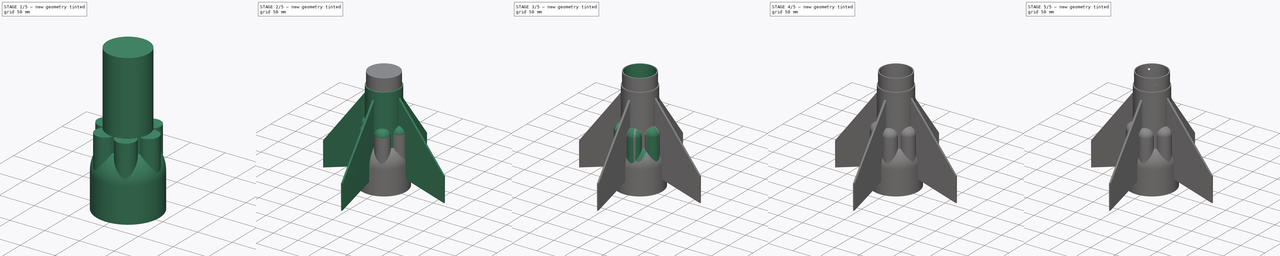
[diagram: build sequence overview — one tinted view per stage of 5, left to right]
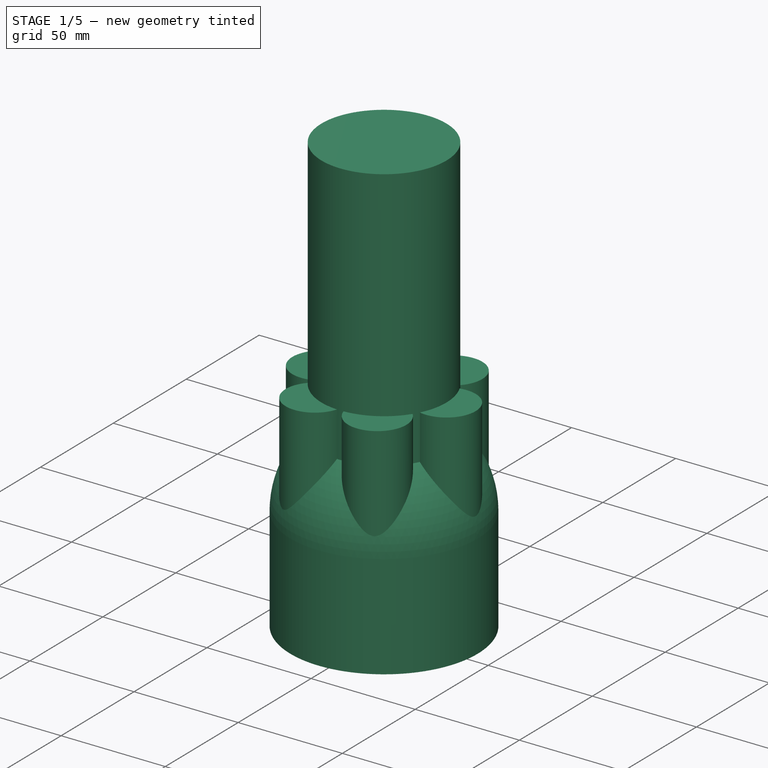
[diagram: stage 1 of 5 — iso view after this stage's code; geometry added in this stage tinted green]
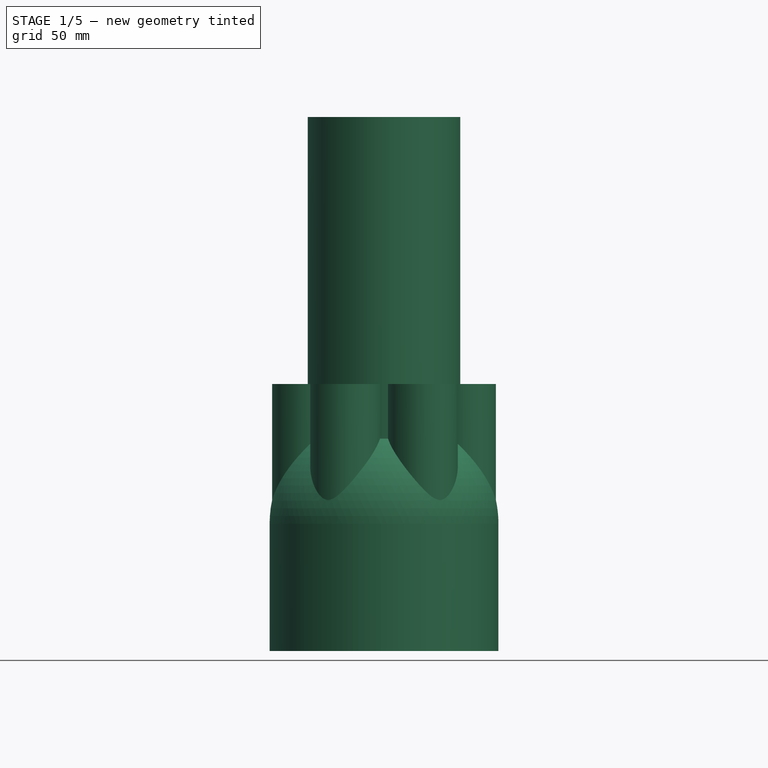
[diagram: stage 1 of 5 — front view after this stage's code; geometry added in this stage tinted green]
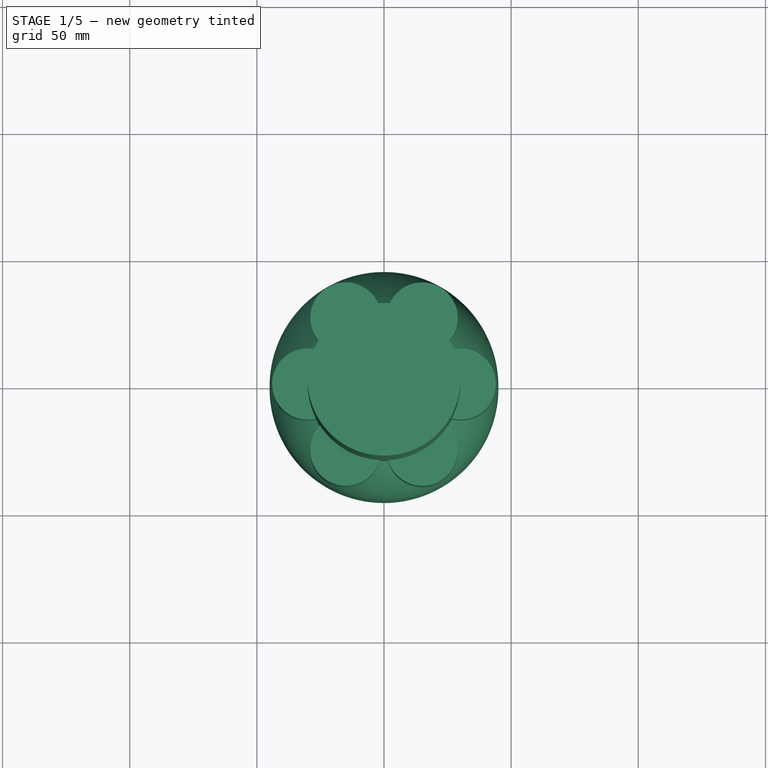
[diagram: stage 1 of 5 — top view after this stage's code; geometry added in this stage tinted green]
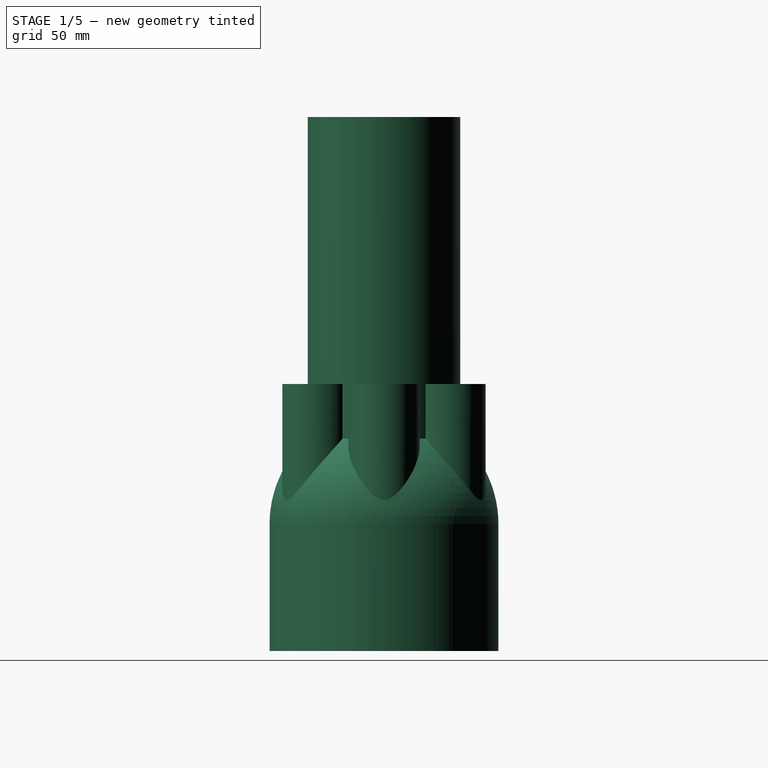
[diagram: stage 1 of 5 — right view after this stage's code; geometry added in this stage tinted green]
FCSTD DOCUMENT  (FreeCAD 1.0R39109 (Git))
Label: 200_etage2_base
License: All rights reserved
LicenseURL: https://en.wikipedia.org/wiki/All_rights_reserved
objects: Sketcher::SketchObject×12, PartDesign::Pocket×10, PartDesign::PolarPattern×7, PartDesign::AdditiveCylinder×4, PartDesign::Body×3, PartDesign::AdditiveSphere×2, PartDesign::AdditiveLoft×1, PartDesign::Boolean×1, App::Part×1
note: 94 computed .brp shape members not serialized (recipe doc carries the construction recipe); baked Part::Feature solids carry a one-line shape summary decoded from their .brp

FEATURE [PartDesign::Body] Body004  label="Ailerons"
  AllowCompound = false
  Group = -> [Sketch015,Sketch016,Cylinder,AdditiveLoft003,PolarPattern002]
  Origin = -> Origin005
  Placement = pos=(0,0,0) rot=(0,0,-1;1.5708rad)
  Tip = -> PolarPattern002
FEATURE [PartDesign::AdditiveCylinder] Cylinder009
  Angle = 360
  AttacherType = Attacher::AttachEngine3D
  AttachmentSupport = -> [XY_Plane007]
  FirstAngle = 0
  Height = 50
  MapMode = 5
  Radius = 45
  SecondAngle = 0
  Suppressed = false
FEATURE [PartDesign::AdditiveSphere] Sphere
  Angle1 = -90
  Angle2 = 90
  Angle3 = 360
  AttacherType = Attacher::AttachEngine3D
  AttachmentOffset = pos=(0,0,50) rot=(0,0,1;0rad)
  AttachmentSupport = -> [XY_Plane007]
  BaseFeature = -> Cylinder009
  MapMode = 5
  Placement = pos=(0,0,50) rot=(0,0,1;0rad)
  Radius = 45
  Suppressed = false
FEATURE [PartDesign::AdditiveCylinder] Cylinder010
  Angle = 360
  AttacherType = Attacher::AttachEngine3D
  AttachmentOffset = pos=(30,0,0) rot=(0,0,1;0rad)
  AttachmentSupport = -> [XY_Plane007]
  BaseFeature = -> Sphere
  FirstAngle = 0
  Height = 105
  MapMode = 5
  Placement = pos=(30,0,0) rot=(0,0,1;0rad)
  Radius = 14
  SecondAngle = 0
  Suppressed = false
FEATURE [PartDesign::PolarPattern] PolarPattern
  Angle = 360
  Axis = -> Z_Axis007
  BaseFeature = -> Cylinder010
  Mode = 0
  Occurrences = 6
  Offset = 120
  Originals = -> [Cylinder010]
  Placement = pos=(30,0,0) rot=(0,0,1;0rad)
  Suppressed = false
  TransformMode = 0
FEATURE [PartDesign::Body] Body005  label="Moteurs"
  AllowCompound = false
  Group = -> [Cylinder009,Sphere,Cylinder010,PolarPattern,Sphere001,PolarPattern003]
  Origin = -> Origin007
  Placement = pos=(0,0,0) rot=(0,0,1;-0.261799rad)
  Tip = -> PolarPattern003
FEATURE [PartDesign::AdditiveCylinder] Cylinder011  label="Intérieur"
  Angle = 360
  AttacherType = Attacher::AttachEngine3D
  FirstAngle = 0
  Height = 210
  Radius = 30
  SecondAngle = 0
  Suppressed = false
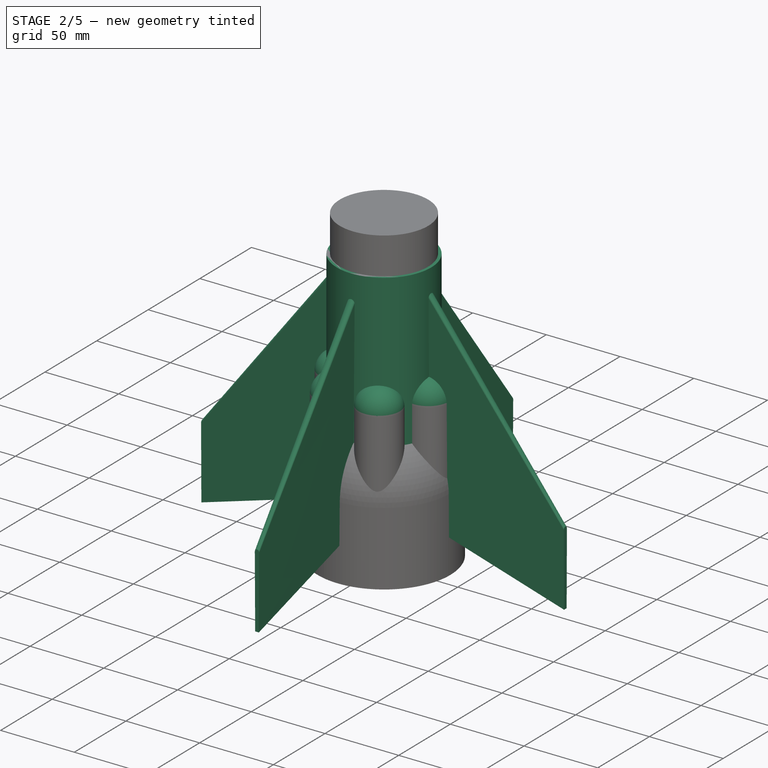
[diagram: stage 2 of 5 — iso view after this stage's code; geometry added in this stage tinted green]
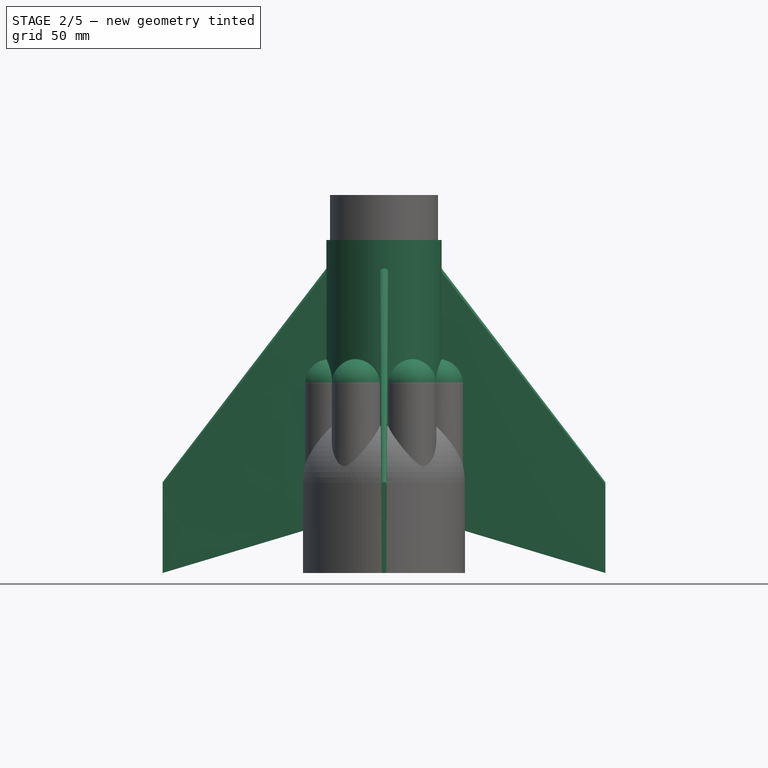
[diagram: stage 2 of 5 — front view after this stage's code; geometry added in this stage tinted green]
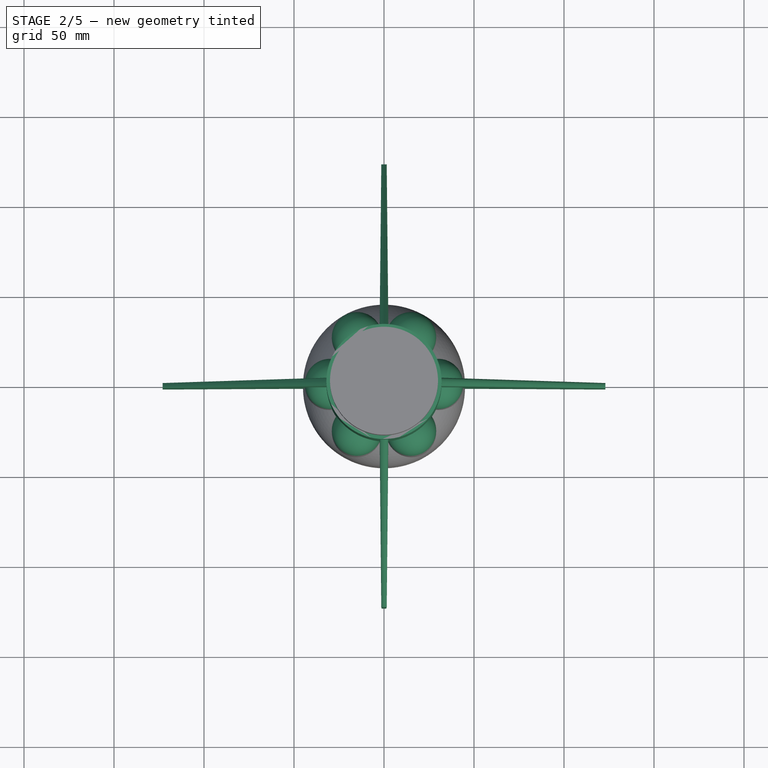
[diagram: stage 2 of 5 — top view after this stage's code; geometry added in this stage tinted green]
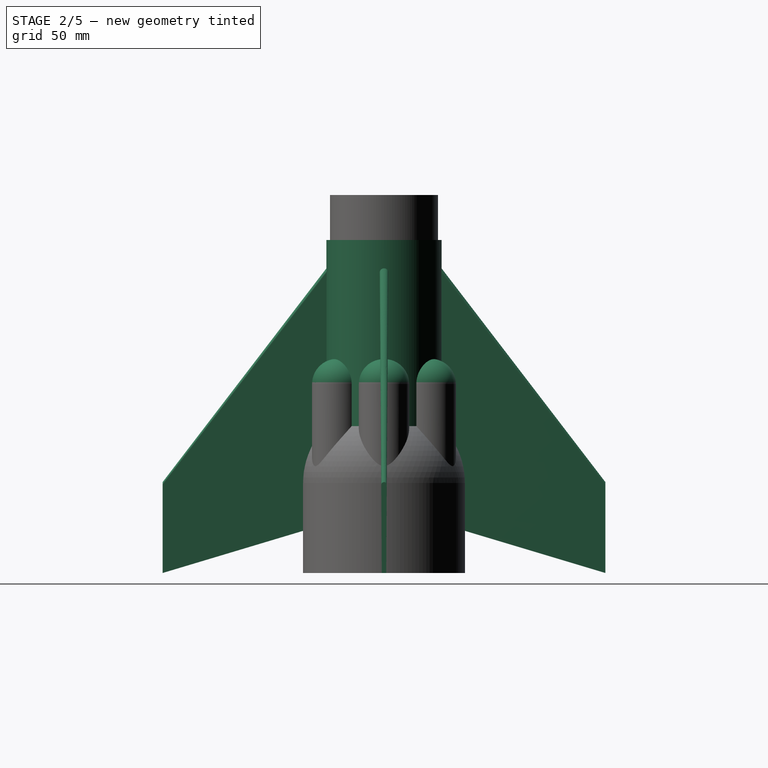
[diagram: stage 2 of 5 — right view after this stage's code; geometry added in this stage tinted green]
FEATURE [Sketcher::SketchObject] Sketch
  ArcFitTolerance = 0
  AttachmentSupport = -> [XY_Plane008]
  FullyConstrained = true
  MakeInternals = false
  MapMode = 5
  sketch-geometry (1):
    g0: Circle CenterX=0 CenterY=0 CenterZ=0 NormalX=0 NormalY=0 NormalZ=1 AngleXU=0 Radius=12.5
  constraints (2):
    c: Coincident(g0,g-1)
    c: Radius(g0) = 12.5
FEATURE [Sketcher::SketchObject] Sketch001
  ArcFitTolerance = 0
  FullyConstrained = true
  MakeInternals = false
  MapMode = 5
  Placement = pos=(20,20,0) rot=(0,0,1;0rad)
  sketch-geometry (1):
    g0: Circle CenterX=0 CenterY=0 CenterZ=0 NormalX=0 NormalY=0 NormalZ=1 AngleXU=0 Radius=12.5
  constraints (2):
    c: Coincident(g0,g-1)
    c: Radius(g0) = 12.5
FEATURE [Sketcher::SketchObject] Sketch002
  ArcFitTolerance = 0
  AttachmentOffset = pos=(0,0,105) rot=(0,0,1;0rad)
  AttachmentSupport = -> [XY_Plane008]
  FullyConstrained = true
  MakeInternals = false
  MapMode = 5
  Placement = pos=(0,0,105) rot=(0,0,1;0rad)
  sketch-geometry (1):
    g0: Circle CenterX=0 CenterY=0 CenterZ=0 NormalX=0 NormalY=0 NormalZ=1 AngleXU=0 Radius=28
  constraints (2):
    c: Coincident(g0,g-1)
    c: Radius(g0) = 28
FEATURE [Sketcher::SketchObject] Sketch008
  ArcFitTolerance = 0
  AttachmentSupport = -> [XY_Plane008]
  FullyConstrained = true
  MakeInternals = false
  MapMode = 5
  sketch-geometry (1):
    g0: Circle CenterX=0 CenterY=0 CenterZ=0 NormalX=0 NormalY=0 NormalZ=1 AngleXU=0 Radius=43
  constraints (2):
    c: Coincident(g0,g-1)
    c: Radius(g0) = 43
FEATURE [Sketcher::SketchObject] Sketch017
  ArcFitTolerance = 0
  AttachmentSupport = -> [XY_Plane008]
  FullyConstrained = true
  MakeInternals = false
  MapMode = 5
  sketch-geometry (1):
    g0: Circle CenterX=0 CenterY=0 CenterZ=0 NormalX=0 NormalY=0 NormalZ=1 AngleXU=0 Radius=10
  constraints (2):
    c: Coincident(g0,g-1)
    c: Radius(g0) = 10
FEATURE [Sketcher::SketchObject] Sketch015
  ArcFitTolerance = 0
  FullyConstrained = true
  MakeInternals = false
  Placement = pos=(23,0,178.5) rot=(0,1,0;1.5708rad)
  sketch-geometry (5):
    g0: LineSegment StartX=148.5 StartY=0 StartZ=0 EndX=148.5 EndY=1.25 EndZ=0
    g1: ArcOfCircle CenterX=0 CenterY=0 CenterZ=0 NormalX=0 NormalY=0 NormalZ=1 AngleXU=0 Radius=2.5 StartAngle=1.5708 EndAngle=4.71239
    g2: LineSegment StartX=148.5 StartY=0 StartZ=0 EndX=148.5 EndY=-1.25 EndZ=0
    g3: LineSegment StartX=0 StartY=-2.5 StartZ=0 EndX=148.5 EndY=-1.25 EndZ=0
    g4: LineSegment StartX=2e-16 StartY=2.5 StartZ=0 EndX=148.5 EndY=1.25 EndZ=0
  constraints (15):
    c: Coincident(g1,g-1)
    c: PointOnObject(g0,g-1)
    c: Vertical(g0)
    c: DistanceY(g0,g0) = 1.25
    c: DistanceX(g1,g0) = 148.5
    c: Radius(g1) = 2.5
    c: PointOnObject(g1,g-2)
    c: PointOnObject(g1,g-2)
    c: Coincident(g2,g0)
    c: Vertical(g2)
    c: Coincident(g3,g2)
    c: Coincident(g4,g0)
    c: Equal(g0,g2)
    c: Coincident(g3,g1)
    c: Coincident(g4,g1)
FEATURE [Sketcher::SketchObject] Sketch016
  ArcFitTolerance = 0
  FullyConstrained = true
  MakeInternals = false
  Placement = pos=(123,0,49) rot=(0,1,0;1.5708rad)
  sketch-geometry (5):
    g0: LineSegment StartX=49 StartY=0 StartZ=0 EndX=49 EndY=1.25 EndZ=0
    g1: ArcOfCircle CenterX=0 CenterY=0 CenterZ=0 NormalX=0 NormalY=0 NormalZ=1 AngleXU=0 Radius=1.5 StartAngle=1.5708 EndAngle=4.71239
    g2: LineSegment StartX=1e-16 StartY=1.5 StartZ=0 EndX=49 EndY=1.25 EndZ=0
    g3: LineSegment StartX=49 StartY=0 StartZ=0 EndX=49 EndY=-1.25 EndZ=0
    g4: LineSegment StartX=49 StartY=-1.25 StartZ=0 EndX=0 EndY=-1.5 EndZ=0
  constraints (15):
    c: Coincident(g1,g-1)
    c: PointOnObject(g0,g-1)
    c: Vertical(g0)
    c: DistanceY(g0,g0) = 1.25
    c: Radius(g1) = 1.5
    c: PointOnObject(g1,g-2)
    c: PointOnObject(g1,g-2)
    c: Coincident(g2,g1)
    c: Coincident(g2,g0)
    c: Coincident(g3,g0)
    c: Vertical(g3)
    c: Coincident(g4,g3)
    c: Coincident(g4,g1)
    c: DistanceX(g1,g0) = 49
    c: Equal(g0,g3)
FEATURE [PartDesign::AdditiveCylinder] Cylinder  label="Corps principal"
  Angle = 360
  AttacherType = Attacher::AttachEngine3D
  FirstAngle = 0
  Height = 185
  Radius = 32
  SecondAngle = 0
  Suppressed = false
FEATURE [PartDesign::AdditiveLoft] AdditiveLoft003
  BaseFeature = -> Cylinder
  Closed = false
  Profile = -> Sketch015
  Ruled = false
  Sections = -> [Sketch016]
  Suppressed = false
FEATURE [PartDesign::PolarPattern] PolarPattern002
  Angle = 360
  Axis = -> Z_Axis005
  BaseFeature = -> AdditiveLoft003
  Mode = 0
  Occurrences = 4
  Offset = 120
  Originals = -> [AdditiveLoft003]
  Suppressed = false
  TransformMode = 0
FEATURE [PartDesign::AdditiveSphere] Sphere001
  Angle1 = -90
  Angle2 = 90
  Angle3 = 360
  AttacherType = Attacher::AttachEngine3D
  AttachmentOffset = pos=(30,0,105) rot=(0,0,1;0rad)
  AttachmentSupport = -> [XY_Plane007]
  BaseFeature = -> PolarPattern
  MapMode = 5
  Placement = pos=(30,0,105) rot=(0,0,1;0rad)
  Radius = 14
  Suppressed = false
FEATURE [PartDesign::PolarPattern] PolarPattern003
  Angle = 360
  Axis = -> Z_Axis007
  BaseFeature = -> Sphere001
  Mode = 0
  Occurrences = 6
  Offset = 120
  Originals = -> [Sphere001]
  Placement = pos=(30,0,105) rot=(0,0,1;0rad)
  Suppressed = false
  TransformMode = 0
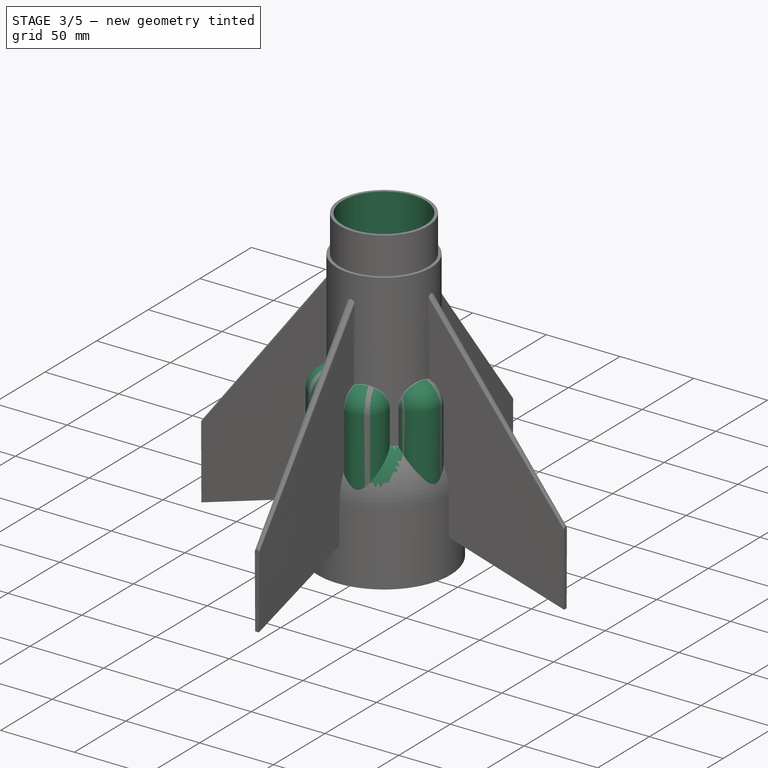
[diagram: stage 3 of 5 — iso view after this stage's code; geometry added in this stage tinted green]
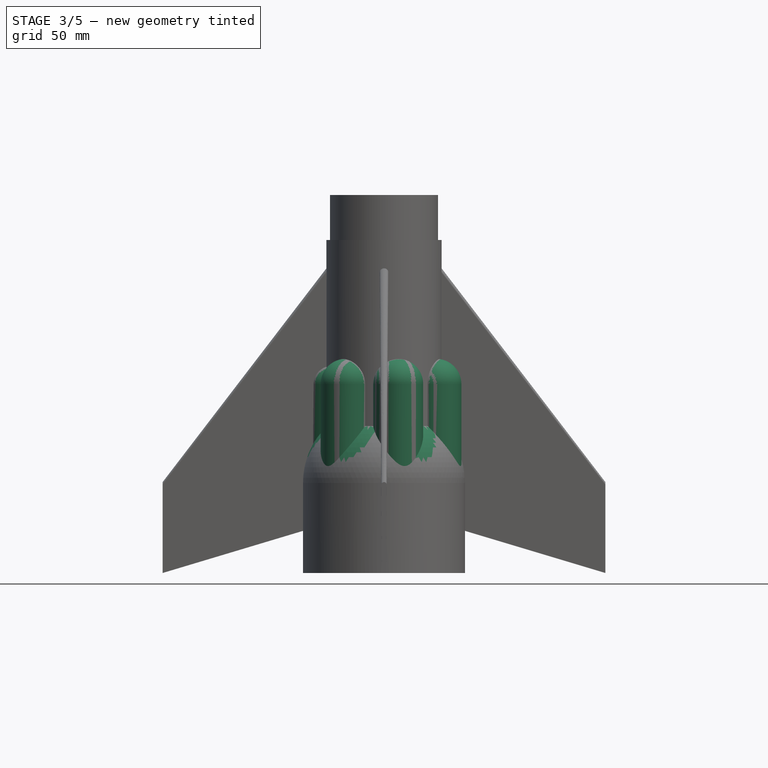
[diagram: stage 3 of 5 — front view after this stage's code; geometry added in this stage tinted green]
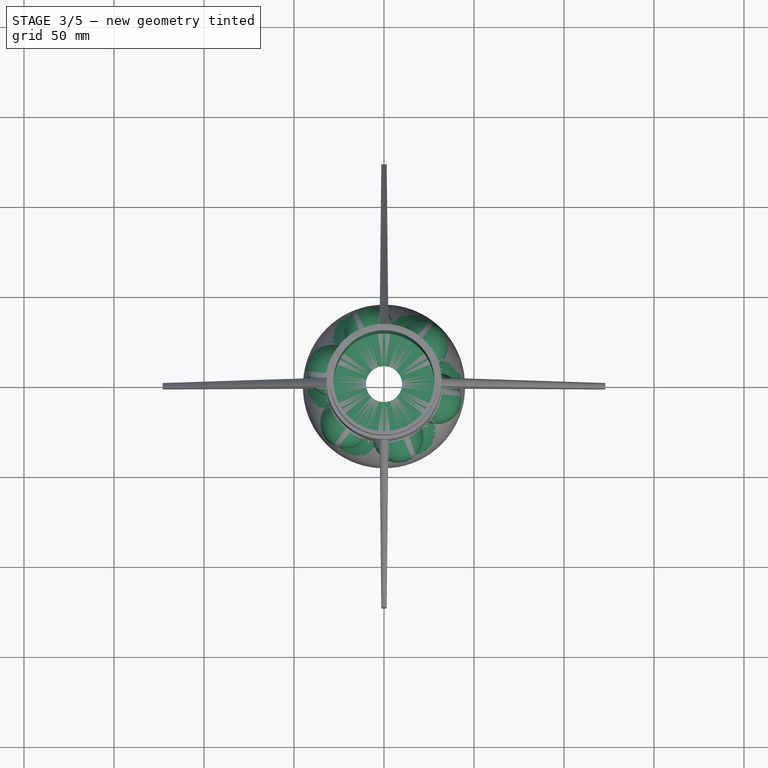
[diagram: stage 3 of 5 — top view after this stage's code; geometry added in this stage tinted green]
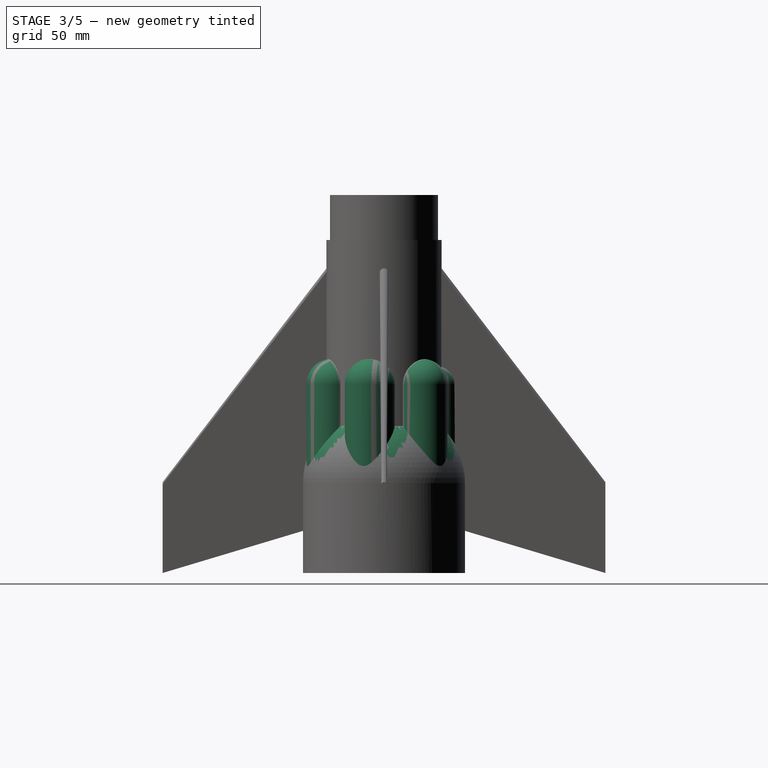
[diagram: stage 3 of 5 — right view after this stage's code; geometry added in this stage tinted green]
FEATURE [PartDesign::Boolean] Boolean
  BaseFeature = -> Cylinder011
  Group = -> [Body004,Body005]
  Suppressed = false
  Type = 0
  UsePlacement = false
FEATURE [PartDesign::Pocket] Pocket  label="Vide moteur centre"
  BaseFeature = -> Boolean
  Direction = (0,0,-1)
  Length = 100
  Length2 = 5
  Profile = -> Sketch
  ReferenceAxis = -> Sketch [N_Axis]
  Reversed = true
  Suppressed = false
  Type = 0
FEATURE [PartDesign::Pocket] Pocket001  label="Vide supérieur"
  BaseFeature = -> Pocket
  Direction = (0,0,-1)
  Length = 5
  Length2 = 5
  Profile = -> Sketch002
  ReferenceAxis = -> Sketch002 [N_Axis]
  Reversed = true
  Suppressed = false
  Type = 1
FEATURE [PartDesign::Pocket] Pocket002  label="Trou charge d'éjection"
  BaseFeature = -> Pocket001
  Direction = (0,0,-1)
  Length = 5
  Length2 = 5
  Midplane = true
  Profile = -> Sketch017
  ReferenceAxis = -> Sketch017 [N_Axis]
  Suppressed = false
  Type = 1
FEATURE [PartDesign::Pocket] Pocket003  label="Creu inférieur"
  BaseFeature = -> Pocket002
  Direction = (0,0,-1)
  Length = 3
  Length2 = 5
  Profile = -> Sketch008
  ReferenceAxis = -> Sketch008 [N_Axis]
  Reversed = true
  Suppressed = false
  Type = 0
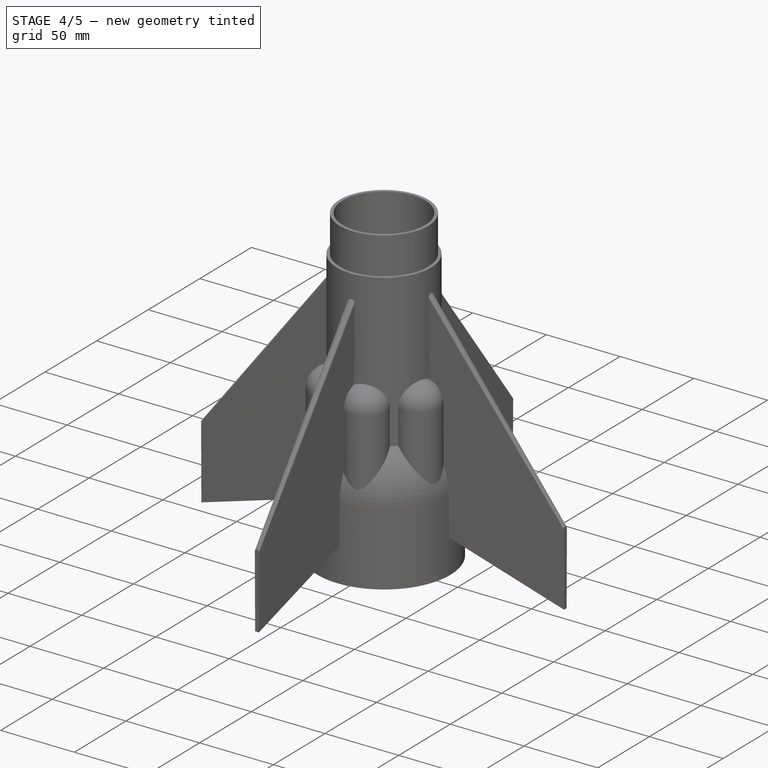
[diagram: stage 4 of 5 — iso view after this stage's code; geometry added in this stage tinted green]
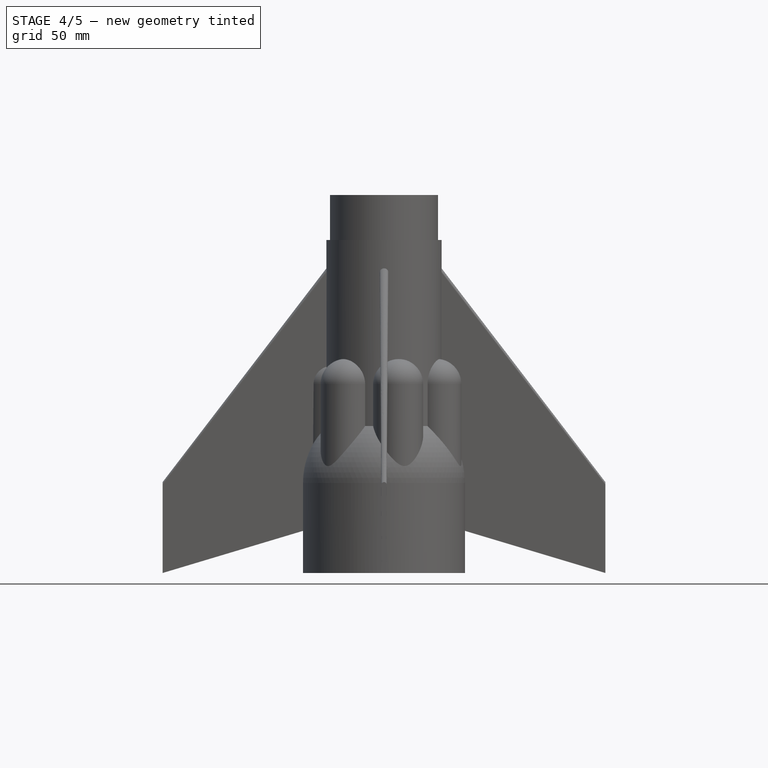
[diagram: stage 4 of 5 — front view after this stage's code; geometry added in this stage tinted green]
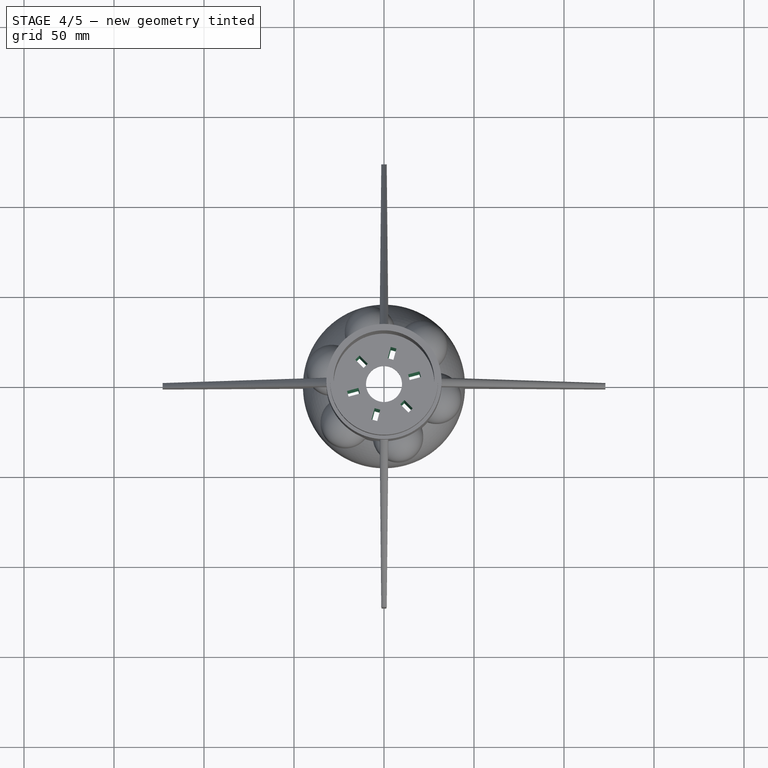
[diagram: stage 4 of 5 — top view after this stage's code; geometry added in this stage tinted green]
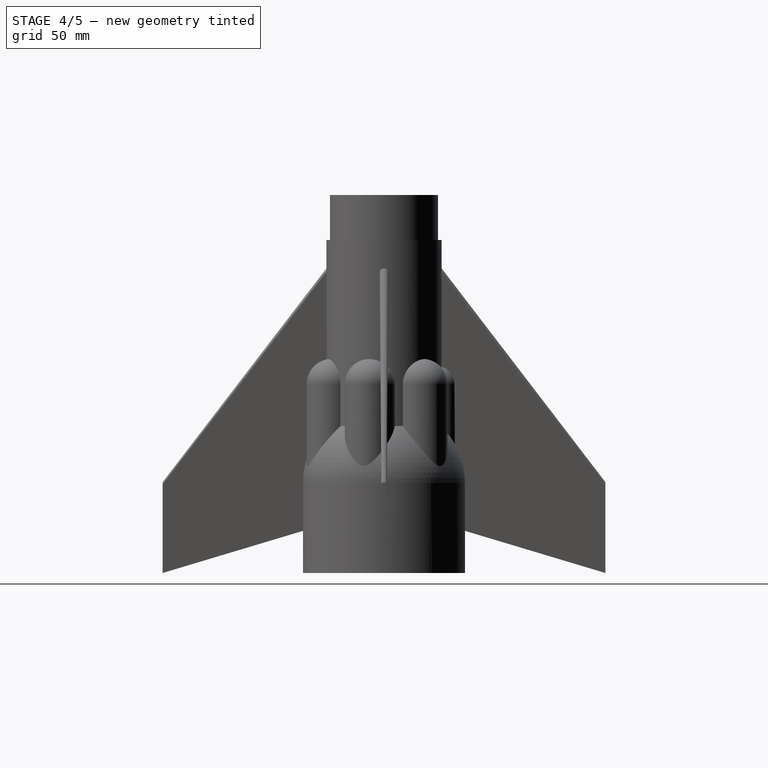
[diagram: stage 4 of 5 — right view after this stage's code; geometry added in this stage tinted green]
FEATURE [PartDesign::Pocket] Pocket004  label="Vide moteur externe 1"
  BaseFeature = -> Pocket003
  Direction = (0,0,-1)
  Length = 100
  Length2 = 5
  Profile = -> Sketch001
  ReferenceAxis = -> Sketch001 [N_Axis]
  Reversed = true
  Suppressed = false
  Type = 0
FEATURE [PartDesign::PolarPattern] PolarPattern004  label="Vide moteurs externes"
  Angle = 360
  Axis = -> Z_Axis008
  BaseFeature = -> Pocket004
  Mode = 0
  Occurrences = 6
  Offset = 120
  Originals = -> [Pocket004]
  Suppressed = false
  TransformMode = 0
FEATURE [Sketcher::SketchObject] Sketch018
  ArcFitTolerance = 0
  AttachmentOffset = pos=(4.5,17,0) rot=(0,0,1;-0.261799rad)
  AttachmentSupport = -> [XY_Plane008]
  FullyConstrained = true
  MakeInternals = false
  MapMode = 5
  Placement = pos=(4.5,17,0) rot=(0,0,1;6.02139rad)
  sketch-geometry (5):
    g0: LineSegment StartX=-1.625 StartY=3.25 StartZ=0 EndX=-1.625 EndY=-3.25 EndZ=0
    g1: LineSegment StartX=-1.625 StartY=-3.25 StartZ=0 EndX=1.625 EndY=-3.25 EndZ=0
    g2: LineSegment StartX=1.625 StartY=-3.25 StartZ=0 EndX=1.625 EndY=3.25 EndZ=0
    g3: LineSegment StartX=1.625 StartY=3.25 StartZ=0 EndX=-1.625 EndY=3.25 EndZ=0
    g4: GeomPoint [constr] X=0 Y=0 Z=0
  constraints (12):
    c: Coincident(g0,g1)
    c: Coincident(g1,g2)
    c: Coincident(g2,g3)
    c: Coincident(g3,g0)
    c: Horizontal(g1)
    c: Horizontal(g3)
    c: Vertical(g0)
    c: Vertical(g2)
    c: Symmetric(g1,g0,g4)
    c: Coincident(g4,g-1)
    c: Distance(g3) = 3.25
    c: Distance(g2) = 6.5
FEATURE [PartDesign::Pocket] Pocket005  label="Passe fil 1"
  BaseFeature = -> PolarPattern004
  Direction = (0,0,-1)
  Length = 5
  Length2 = 5
  Midplane = true
  Profile = -> Sketch018
  ReferenceAxis = -> Sketch018 [N_Axis]
  Suppressed = false
  Type = 1
FEATURE [PartDesign::PolarPattern] PolarPattern005  label="Passes fils"
  Angle = 360
  Axis = -> Z_Axis008
  BaseFeature = -> Pocket005
  Mode = 0
  Occurrences = 6
  Offset = 120
  Originals = -> [Pocket005]
  Suppressed = false
  TransformMode = 0
FEATURE [Sketcher::SketchObject] Sketch019
  ArcFitTolerance = 0
  AttachmentOffset = pos=(0,0,0) rot=(0,0,1;-0.261799rad)
  AttachmentSupport = -> [XY_Plane008]
  FullyConstrained = true
  MakeInternals = false
  MapMode = 5
  Placement = pos=(0,0,0) rot=(0,0,1;6.02139rad)
  sketch-geometry (1):
    g0: Circle CenterX=0 CenterY=-38 CenterZ=0 NormalX=0 NormalY=0 NormalZ=1 AngleXU=0 Radius=2
  constraints (3):
    c: PointOnObject(g0,g-2)
    c: DistanceY(g0,g-1) = 38
    c: Radius(g0) = 2
FEATURE [PartDesign::Pocket] Pocket006  label="Trou insert M3"
  BaseFeature = -> PolarPattern005
  Direction = (0,0,-1)
  Length = 15
  Length2 = 5
  Profile = -> Sketch019
  ReferenceAxis = -> Sketch019 [N_Axis]
  Reversed = true
  Suppressed = false
  Type = 0
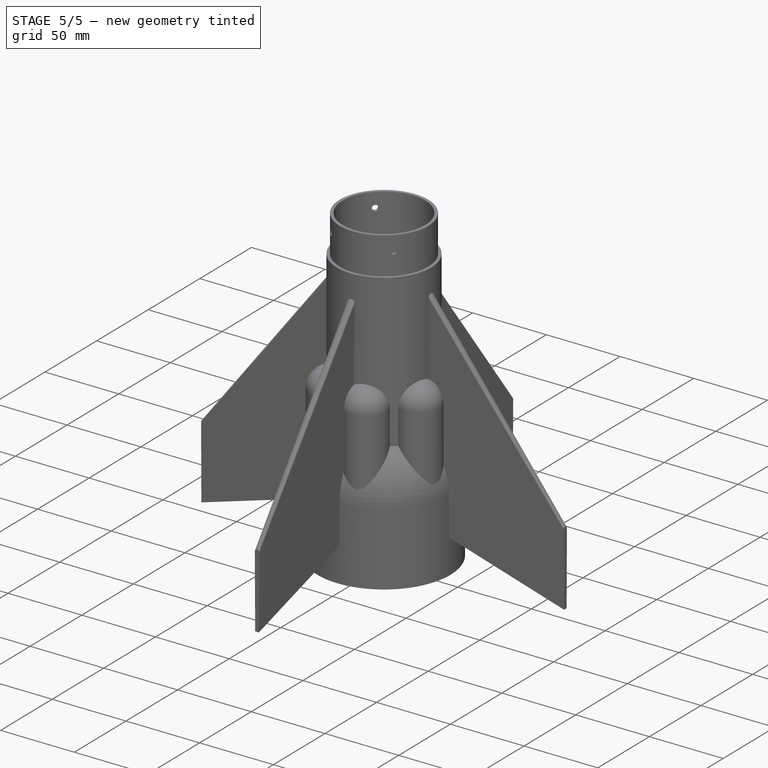
[diagram: stage 5 of 5 — iso view after this stage's code; geometry added in this stage tinted green]
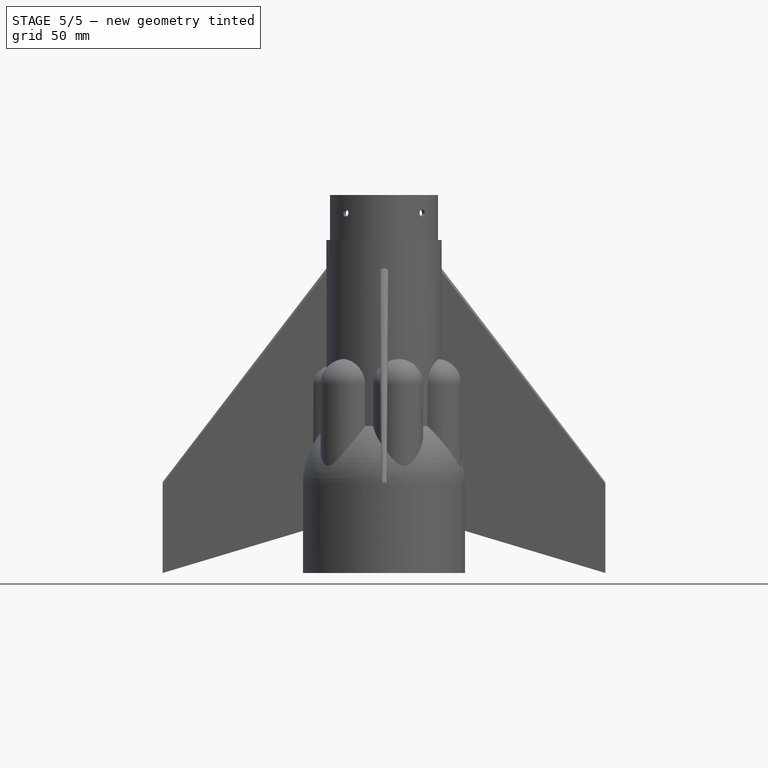
[diagram: stage 5 of 5 — front view after this stage's code; geometry added in this stage tinted green]
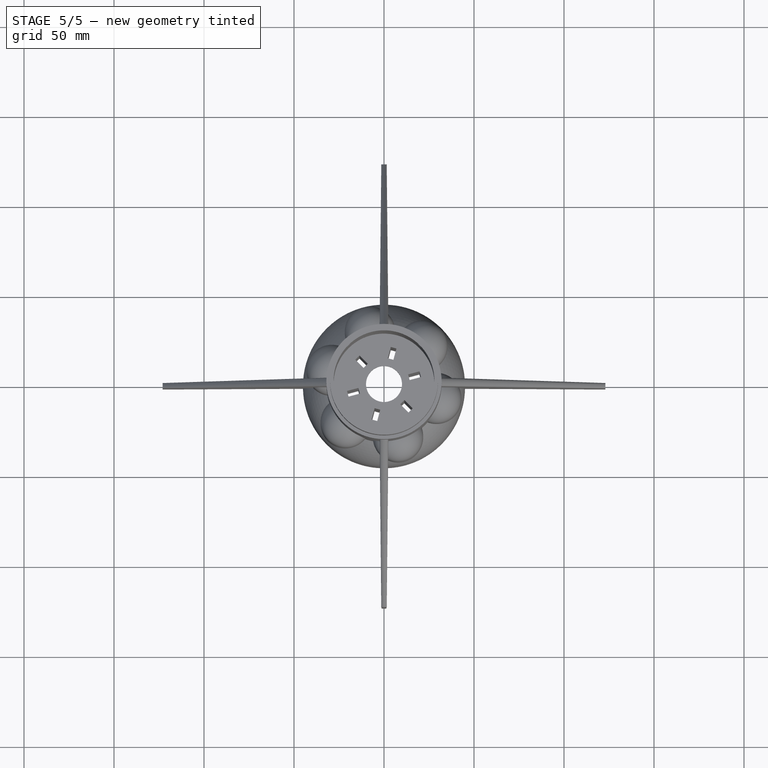
[diagram: stage 5 of 5 — top view after this stage's code; geometry added in this stage tinted green]
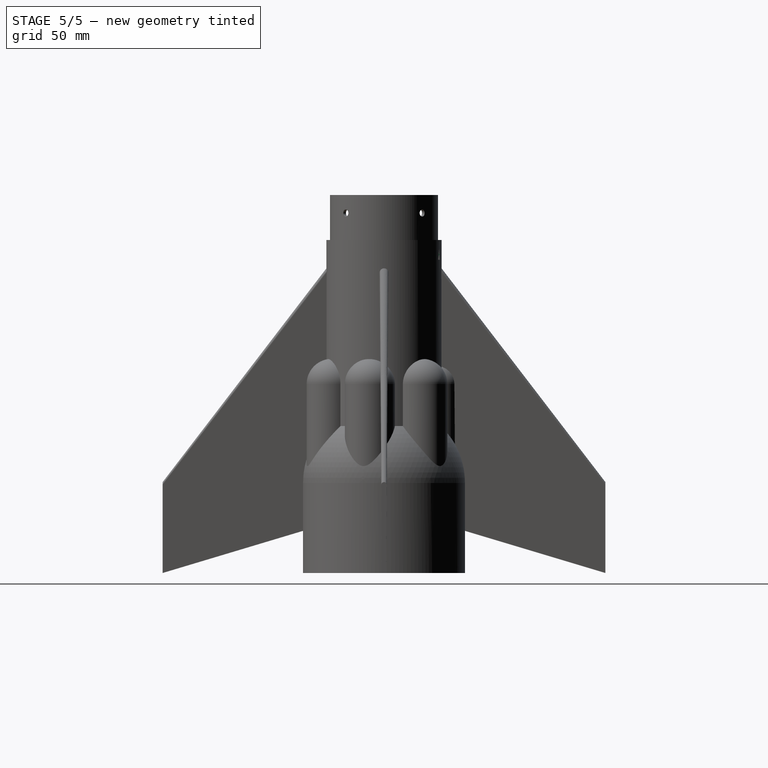
[diagram: stage 5 of 5 — right view after this stage's code; geometry added in this stage tinted green]
FEATURE [PartDesign::PolarPattern] PolarPattern006  label="Trous insert M3"
  Angle = 360
  Axis = -> Sketch019 [N_Axis]
  BaseFeature = -> Pocket006
  Mode = 0
  Occurrences = 3
  Offset = 120
  Originals = -> [Pocket006]
  Suppressed = false
  TransformMode = 0
FEATURE [Sketcher::SketchObject] Sketch021
  ArcFitTolerance = 0
  AttachmentOffset = pos=(0,200,0) rot=(0,1,0;0.785398rad)
  AttachmentSupport = -> [YZ_Plane008]
  FullyConstrained = true
  MakeInternals = false
  MapMode = 5
  Placement = pos=(0,0,200) rot=(0.281085,0.678598,0.678598;2.59356rad)
  sketch-geometry (1):
    g0: Circle CenterX=0 CenterY=0 CenterZ=0 NormalX=0 NormalY=0 NormalZ=1 AngleXU=0 Radius=1.95
  constraints (2):
    c: Coincident(g0,g-1)
    c: Radius(g0) = 1.95
FEATURE [PartDesign::Pocket] Pocket008  label="Trous insert M3 supérieurs"
  BaseFeature = -> PolarPattern006
  Direction = (-0.707107,-0.707107,0)
  Length = 5
  Length2 = 5
  Midplane = true
  Profile = -> Sketch021
  ReferenceAxis = -> Sketch021 [N_Axis]
  Suppressed = false
  Type = 1
FEATURE [PartDesign::PolarPattern] PolarPattern009
  Angle = 90
  Axis = -> Z_Axis008
  BaseFeature = -> Pocket008
  Mode = 0
  Occurrences = 2
  Offset = 120
  Originals = -> [Pocket008]
  Suppressed = false
  TransformMode = 0
FEATURE [Sketcher::SketchObject] Sketch022
  ArcFitTolerance = 0
  AttachmentOffset = pos=(32,180,10) rot=(0,1,0;1.22173rad)
  AttachmentSupport = -> [YZ_Plane008]
  FullyConstrained = true
  MakeInternals = false
  MapMode = 5
  Placement = pos=(10,32,180) rot=(0.123724,0.701674,0.701674;2.8954rad)
  sketch-geometry (3):
    g0: LineSegment StartX=-2e-16 StartY=0 StartZ=0 EndX=1.5 EndY=-6 EndZ=0
    g1: LineSegment StartX=1.5 StartY=-6 StartZ=0 EndX=-1.5 EndY=-6 EndZ=0
    g2: LineSegment StartX=-1.5 StartY=-6 StartZ=0 EndX=-2e-16 EndY=0 EndZ=0
  constraints (7):
    c: Coincident(g0,g-1)
    c: Coincident(g1,g0)
    c: Coincident(g2,g1)
    c: Coincident(g2,g0)
    c: Symmetric(g1,g0,g-2)
    c: DistanceX(g1,g1) = 3
    c: DistanceY(g1,g0) = 6
FEATURE [PartDesign::Pocket] Pocket009  label="Marquage extérieur"
  BaseFeature = -> PolarPattern009
  Direction = (-0.34202,-0.939693,0)
  Length = 3
  Length2 = 5
  Profile = -> Sketch022
  ReferenceAxis = -> Sketch022 [N_Axis]
  Suppressed = false
  Type = 0
FEATURE [Sketcher::SketchObject] Sketch023
  ArcFitTolerance = 0
  AttachmentOffset = pos=(8,30,0) rot=(0,0,1;-0.261799rad)
  AttachmentSupport = -> [XY_Plane008]
  FullyConstrained = true
  MakeInternals = false
  MapMode = 5
  Placement = pos=(8,30,0) rot=(0,0,1;6.02139rad)
  sketch-geometry (3):
    g0: LineSegment StartX=0 StartY=0 StartZ=0 EndX=1.5 EndY=6 EndZ=0
    g1: LineSegment StartX=1.5 StartY=6 StartZ=0 EndX=-1.5 EndY=6 EndZ=0
    g2: LineSegment StartX=-1.5 StartY=6 StartZ=0 EndX=0 EndY=0 EndZ=0
  constraints (7):
    c: Coincident(g0,g-1)
    c: Coincident(g1,g0)
    c: Coincident(g2,g1)
    c: Coincident(g2,g0)
    c: Symmetric(g1,g0,g-2)
    c: DistanceX(g1,g1) = 3
    c: DistanceY(g0,g0) = 6
FEATURE [PartDesign::Pocket] Pocket010  label="Marquage inférieur"
  BaseFeature = -> Pocket009
  Direction = (0,0,-1)
  Length = 7
  Length2 = 5
  Midplane = true
  Profile = -> Sketch023
  ReferenceAxis = -> Sketch023 [N_Axis]
  Suppressed = false
  Type = 0
FEATURE [PartDesign::Body] Body006  label="Corps"
  AllowCompound = false
  Group = -> [Cylinder011,Boolean,Sketch,Pocket,Sketch002,Pocket001,Sketch017,Pocket002,Sketch008,Pocket003,Sketch001,Pocket004,PolarPattern004,Sketch018,Pocket005,PolarPattern005,Sketch019,Pocket006,PolarPattern006,Sketch021,Pocket008,PolarPattern009,Sketch022,Pocket009,Sketch023,Pocket010]
  Origin = -> Origin008
  Tip = -> Pocket010
FEATURE [App::Part] Part
  Group = -> [Body006]
  Origin = -> Origin006
  Placement = pos=(0,0,0) rot=(0,0,1;0.785398rad)
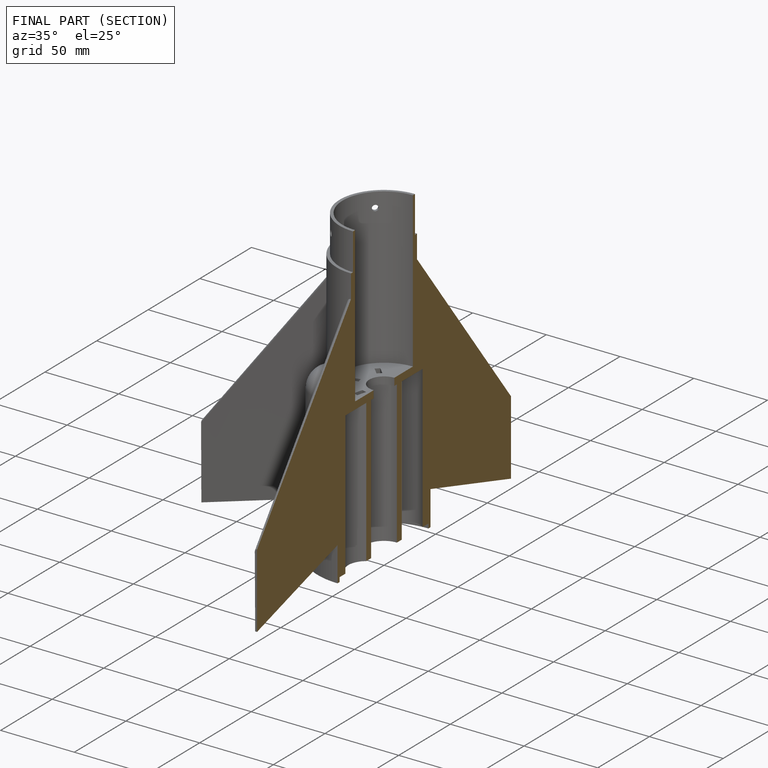
[diagram: finished part — half-section view (interior)]
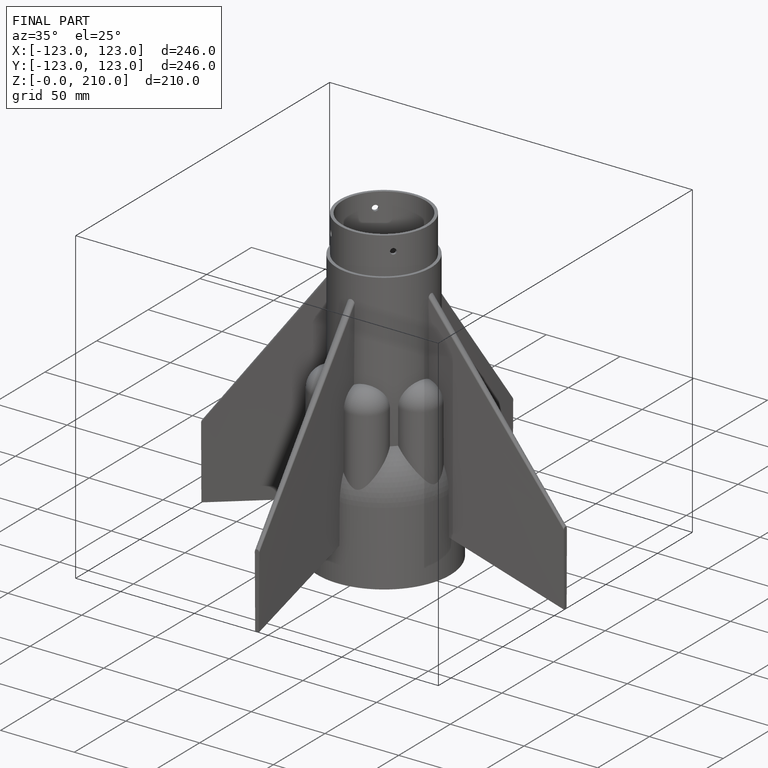
[diagram: finished part — iso view with bounding-box wireframe]
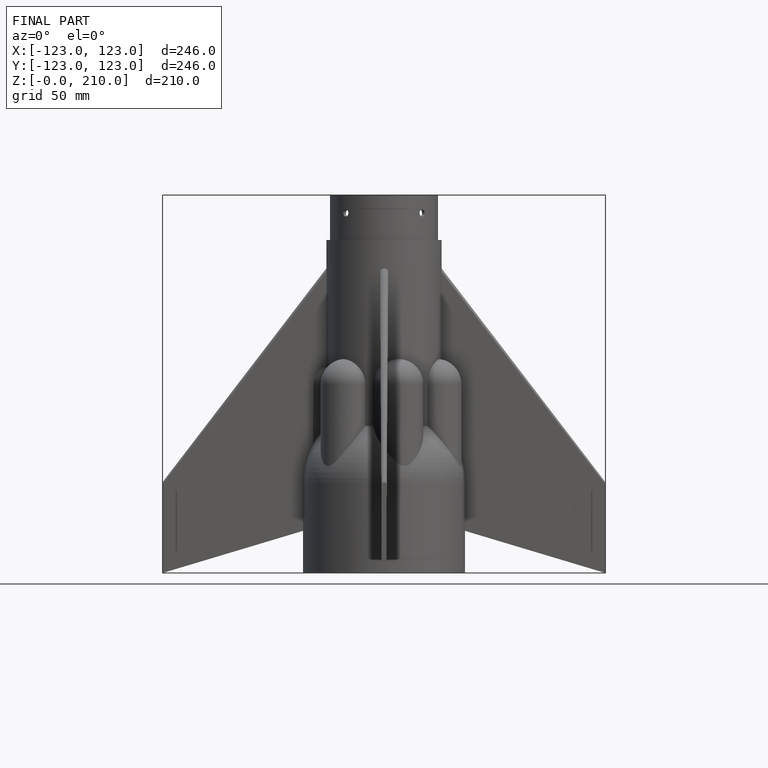
[diagram: finished part — front view with bounding-box wireframe]
